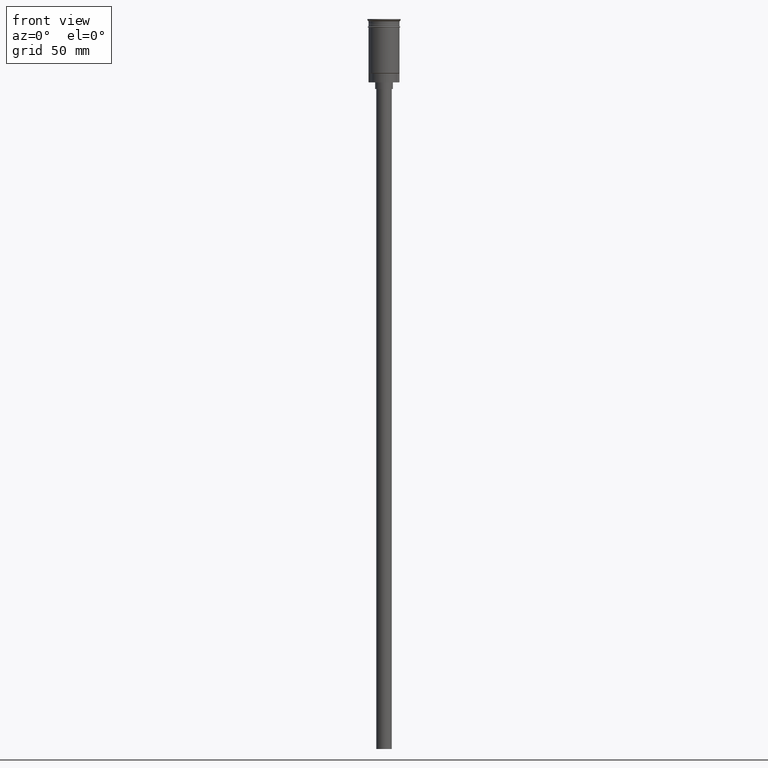
[diagram: clean part render]
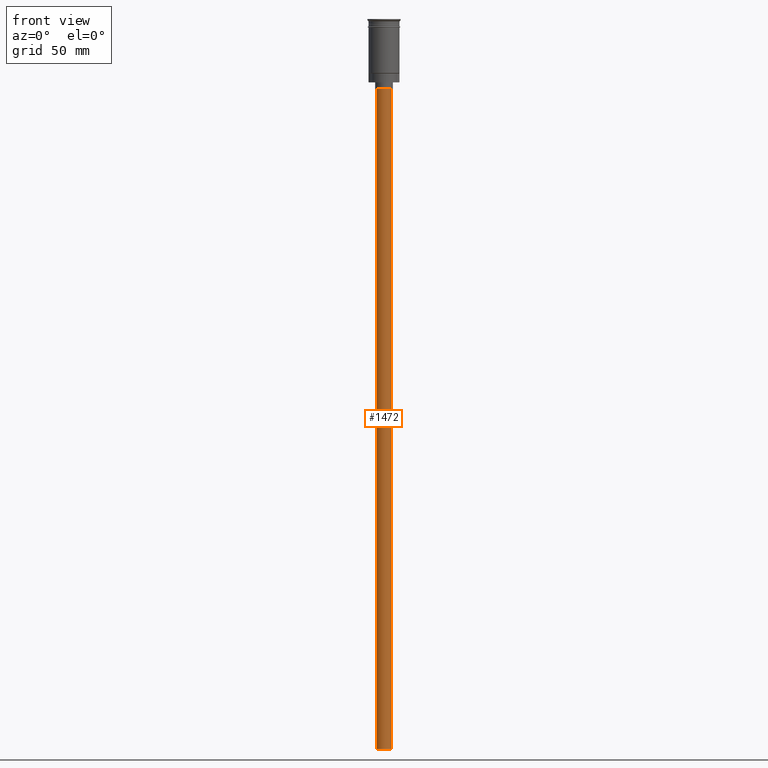
[diagram: same view with one face highlighted and labeled with its STEP entity id]
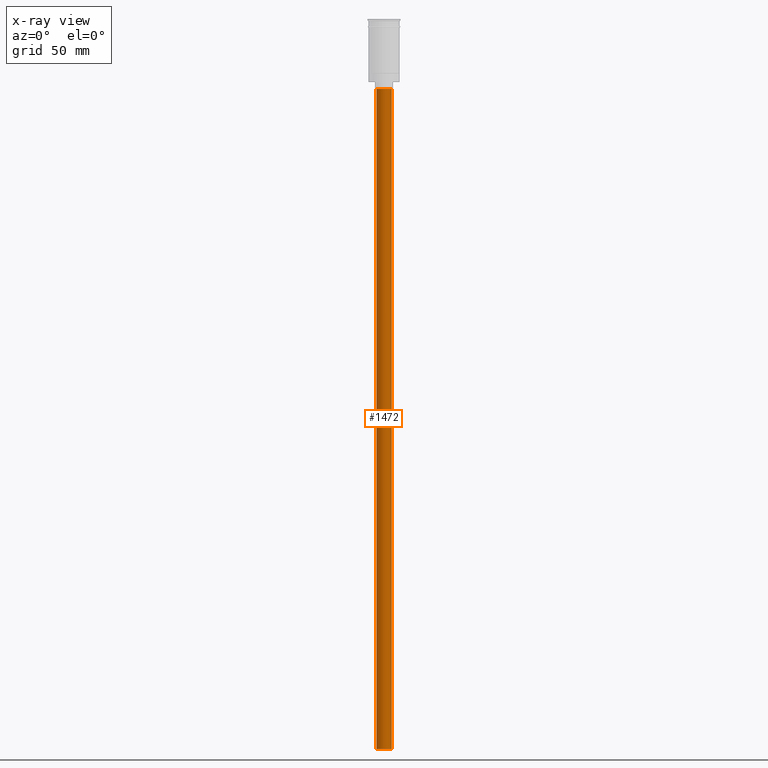
[diagram: x-ray of the same camera — body ghosted, the highlighted face saturated]
A machine part, front view. The second image highlights one B-rep face of the part: STEP entity #1472.
The next image is the same camera in x-ray: the body ghosted, the highlighted face saturated — about 0% of this face is hidden behind the body in this view.
In plain terms, the highlighted cylindrical surface (edge-blend (fillet) strip) has radius 3.5 mm, axis along (-0, -0, 1).
Its self-contained STEP definition (entity closure, byte-faithful):
#104 = DIRECTION ( 'NONE',  ( -1.000000000000000000, 0.000000000000000000, 0.000000000000000000 ) ) ;
#151 = CARTESIAN_POINT ( 'NONE',  ( -3.500000000000000444, 4.286263797015737088E-16, -31.50000000000000000 ) ) ;
#159 = CARTESIAN_POINT ( 'NONE',  ( -3.500000000000000444, 4.286263797015737088E-16, -328.5000000000000000 ) ) ;
#200 = DIRECTION ( 'NONE',  ( 0.000000000000000000, 0.000000000000000000, -1.000000000000000000 ) ) ;
#218 = VERTEX_POINT ( 'NONE', #965 ) ;
#270 = LINE ( 'NONE', #159, #1258 ) ;
#410 = AXIS2_PLACEMENT_3D ( 'NONE', #536, #200, #1295 ) ;
#466 = CARTESIAN_POINT ( 'NONE',  ( 3.500000000000000444, 0.000000000000000000, -328.5000000000000000 ) ) ;
#511 = DIRECTION ( 'NONE',  ( -0.000000000000000000, -0.000000000000000000, 1.000000000000000000 ) ) ;
#536 = CARTESIAN_POINT ( 'NONE',  ( 0.000000000000000000, 0.000000000000000000, -31.50000000000000000 ) ) ;
#549 = AXIS2_PLACEMENT_3D ( 'NONE', #635, #511, #1006 ) ;
#589 = VECTOR ( 'NONE', #820, 1000.000000000000000 ) ;
#635 = CARTESIAN_POINT ( 'NONE',  ( 0.000000000000000000, 0.000000000000000000, -328.5000000000000000 ) ) ;
#686 = ORIENTED_EDGE ( 'NONE', *, *, #753, .F. ) ;
#709 = ORIENTED_EDGE ( 'NONE', *, *, #928, .F. ) ;
#753 = EDGE_CURVE ( 'NONE', #1065, #774, #270, .T. ) ;
#766 = DIRECTION ( 'NONE',  ( -0.000000000000000000, -0.000000000000000000, 1.000000000000000000 ) ) ;
#774 = VERTEX_POINT ( 'NONE', #151 ) ;
#820 = DIRECTION ( 'NONE',  ( -0.000000000000000000, -0.000000000000000000, 1.000000000000000000 ) ) ;
#833 = DIRECTION ( 'NONE',  ( 0.000000000000000000, 0.000000000000000000, -1.000000000000000000 ) ) ;
#866 = CARTESIAN_POINT ( 'NONE',  ( -3.500000000000000444, 4.286263797015737088E-16, -328.5000000000000000 ) ) ;
#928 = EDGE_CURVE ( 'NONE', #218, #1065, #1494, .T. ) ;
#962 = CARTESIAN_POINT ( 'NONE',  ( 0.000000000000000000, 0.000000000000000000, -328.5000000000000000 ) ) ;
#965 = CARTESIAN_POINT ( 'NONE',  ( 3.500000000000000444, 0.000000000000000000, -328.5000000000000000 ) ) ;
#1006 = DIRECTION ( 'NONE',  ( 1.000000000000000000, 0.000000000000000000, 0.000000000000000000 ) ) ;
#1065 = VERTEX_POINT ( 'NONE', #866 ) ;
#1080 = LINE ( 'NONE', #466, #589 ) ;
#1124 = ORIENTED_EDGE ( 'NONE', *, *, #1252, .T. ) ;
#1151 = EDGE_CURVE ( 'NONE', #1394, #774, #1549, .T. ) ;
#1252 = EDGE_CURVE ( 'NONE', #218, #1394, #1080, .T. ) ;
#1258 = VECTOR ( 'NONE', #766, 1000.000000000000000 ) ;
#1271 = ORIENTED_EDGE ( 'NONE', *, *, #1151, .T. ) ;
#1295 = DIRECTION ( 'NONE',  ( -1.000000000000000000, 0.000000000000000000, 0.000000000000000000 ) ) ;
#1327 = CYLINDRICAL_SURFACE ( 'NONE', #549, 3.500000000000000444 ) ;
#1355 = AXIS2_PLACEMENT_3D ( 'NONE', #962, #833, #104 ) ;
#1394 = VERTEX_POINT ( 'NONE', #1523 ) ;
#1472 = ADVANCED_FACE ( 'NONE', ( #1573 ), #1327, .T. ) ;
#1494 = CIRCLE ( 'NONE', #1355, 3.500000000000000444 ) ;
#1523 = CARTESIAN_POINT ( 'NONE',  ( 3.500000000000000444, 0.000000000000000000, -31.50000000000000000 ) ) ;
#1549 = CIRCLE ( 'NONE', #410, 3.500000000000000444 ) ;
#1573 = FACE_OUTER_BOUND ( 'NONE', #1590, .T. ) ;
#1590 = EDGE_LOOP ( 'NONE', ( #686, #709, #1124, #1271 ) ) ;